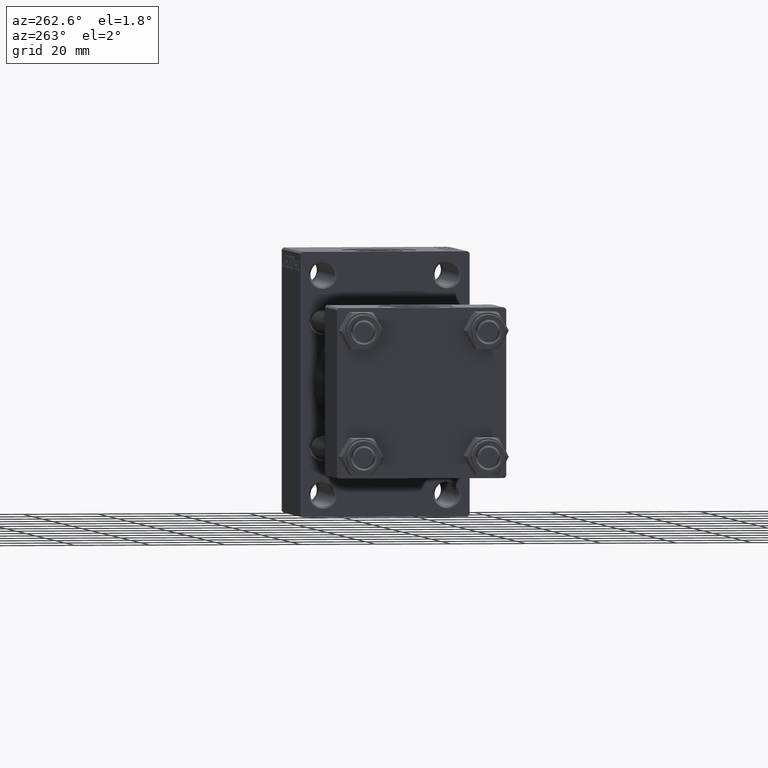
[diagram: clean part render]
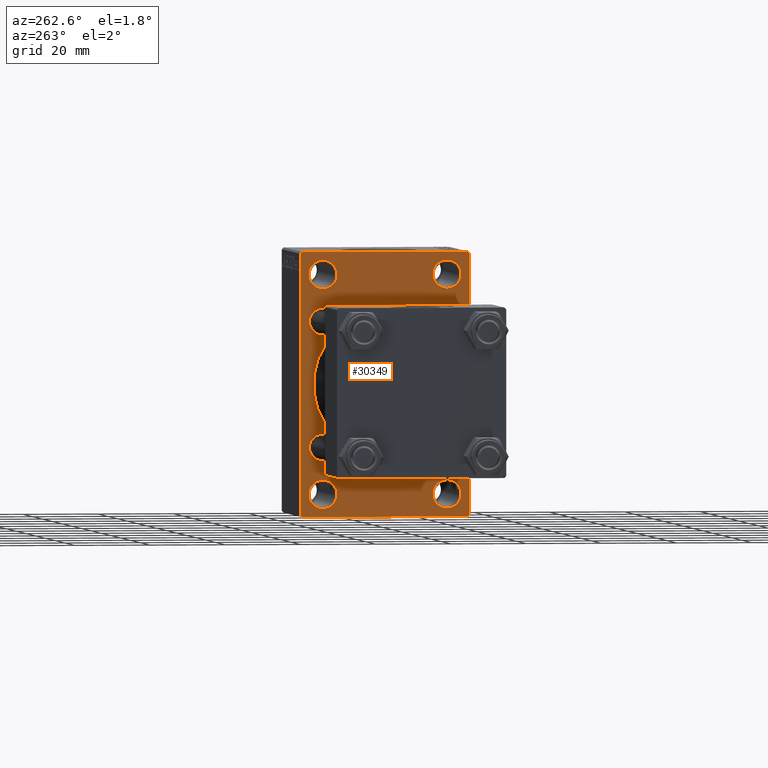
[diagram: same view with one face highlighted and labeled with its STEP entity id]
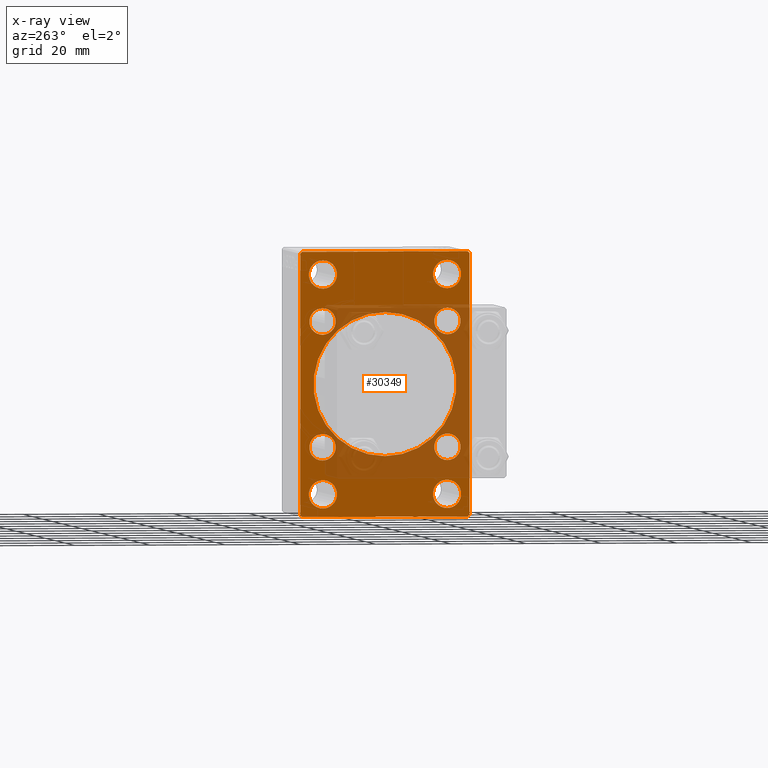
[diagram: x-ray of the same camera — body ghosted, the highlighted face saturated]
A machine part, auxiliary view. The second image highlights one B-rep face of the part: STEP entity #30349.
The next image is the same camera in x-ray: the body ghosted, the highlighted face saturated — about 34% of this face is hidden behind the body in this view.
In plain terms, the highlighted planar face has unit normal (-1, 0, 0).
Its self-contained STEP definition (entity closure, byte-faithful):
#128 = DIRECTION ( 'NONE',  ( 0.000000000000000000, 0.000000000000000000, 1.000000000000000000 ) ) ;
#211 = VERTEX_POINT ( 'NONE', #11566 ) ;
#306 = LINE ( 'NONE', #44600, #1522 ) ;
#430 = CIRCLE ( 'NONE', #41159, 3.500000000000006661 ) ;
#546 = FACE_BOUND ( 'NONE', #21988, .T. ) ;
#673 = EDGE_CURVE ( 'NONE', #44016, #38957, #18629, .T. ) ;
#787 = DIRECTION ( 'NONE',  ( 1.000000000000000000, 0.000000000000000000, 0.000000000000000000 ) ) ;
#964 = AXIS2_PLACEMENT_3D ( 'NONE', #19815, #8967, #30889 ) ;
#1014 = DIRECTION ( 'NONE',  ( 1.000000000000000000, 0.000000000000000000, 0.000000000000000000 ) ) ;
#1069 = VECTOR ( 'NONE', #35508, 1000.000000000000000 ) ;
#1114 = AXIS2_PLACEMENT_3D ( 'NONE', #35070, #2076, #16772 ) ;
#1242 = DIRECTION ( 'NONE',  ( -0.000000000000000000, 0.7071067811865474617, 0.7071067811865474617 ) ) ;
#1306 = CARTESIAN_POINT ( 'NONE',  ( 75.00000000000001421, -16.59999999999999076, -13.10000000000000142 ) ) ;
#1522 = VECTOR ( 'NONE', #15006, 999.9999999999998863 ) ;
#1729 = CIRCLE ( 'NONE', #15575, 3.749999999999937383 ) ;
#2076 = DIRECTION ( 'NONE',  ( 1.000000000000000000, 0.000000000000000000, 0.000000000000000000 ) ) ;
#2102 = AXIS2_PLACEMENT_3D ( 'NONE', #19238, #9124, #34410 ) ;
#2360 = CARTESIAN_POINT ( 'NONE',  ( 75.00000000000001421, 16.50000000000000000, 25.25000000000007461 ) ) ;
#2449 = CIRCLE ( 'NONE', #19395, 3.749999999999937383 ) ;
#2848 = CARTESIAN_POINT ( 'NONE',  ( 75.00000000000001421, -16.59999999999999076, -20.10000000000001208 ) ) ;
#2864 = DIRECTION ( 'NONE',  ( 0.000000000000000000, 0.000000000000000000, 1.000000000000000000 ) ) ;
#3168 = ORIENTED_EDGE ( 'NONE', *, *, #25784, .T. ) ;
#3332 = EDGE_LOOP ( 'NONE', ( #11319, #10748 ) ) ;
#3647 = ORIENTED_EDGE ( 'NONE', *, *, #37297, .T. ) ;
#3709 = CIRCLE ( 'NONE', #11421, 3.749999999999930278 ) ;
#4061 = VERTEX_POINT ( 'NONE', #31529 ) ;
#4308 = EDGE_CURVE ( 'NONE', #39603, #25160, #1729, .T. ) ;
#4470 = ORIENTED_EDGE ( 'NONE', *, *, #37786, .T. ) ;
#4563 = CARTESIAN_POINT ( 'NONE',  ( 75.00000000000001421, 16.59999999999999787, 13.09999999999999609 ) ) ;
#4972 = CARTESIAN_POINT ( 'NONE',  ( 75.00000000000001421, 22.49999999999999645, 34.50000000000000000 ) ) ;
#5538 = VERTEX_POINT ( 'NONE', #35523 ) ;
#5568 = CIRCLE ( 'NONE', #23253, 19.00000000000000000 ) ;
#5669 = EDGE_CURVE ( 'NONE', #25160, #39603, #12552, .T. ) ;
#5719 = DIRECTION ( 'NONE',  ( 0.000000000000000000, 0.000000000000000000, 1.000000000000000000 ) ) ;
#5794 = VERTEX_POINT ( 'NONE', #29972 ) ;
#6074 = CARTESIAN_POINT ( 'NONE',  ( 75.00000000000001421, 21.99999999999999645, -35.00000000000000000 ) ) ;
#6118 = CARTESIAN_POINT ( 'NONE',  ( 75.00000000000001421, 22.49999999999999645, -35.00000000000000000 ) ) ;
#6497 = CARTESIAN_POINT ( 'NONE',  ( 75.00000000000001421, 22.49999999999999645, -34.50000000000000000 ) ) ;
#6553 = VECTOR ( 'NONE', #45233, 1000.000000000000000 ) ;
#6584 = CIRCLE ( 'NONE', #19689, 3.749999999999933831 ) ;
#6755 = AXIS2_PLACEMENT_3D ( 'NONE', #7577, #41022, #25878 ) ;
#6778 = ORIENTED_EDGE ( 'NONE', *, *, #43752, .T. ) ;
#6816 = PLANE ( 'NONE',  #39939 ) ;
#6899 = ORIENTED_EDGE ( 'NONE', *, *, #13178, .F. ) ;
#7577 = CARTESIAN_POINT ( 'NONE',  ( 75.00000000000001421, -16.50000000000000000, 29.00000000000000711 ) ) ;
#7666 = ORIENTED_EDGE ( 'NONE', *, *, #14927, .T. ) ;
#7768 = FACE_BOUND ( 'NONE', #7979, .T. ) ;
#7836 = DIRECTION ( 'NONE',  ( 1.000000000000000000, 0.000000000000000000, 0.000000000000000000 ) ) ;
#7979 = EDGE_LOOP ( 'NONE', ( #4470, #47085 ) ) ;
#8231 = CARTESIAN_POINT ( 'NONE',  ( 75.00000000000001421, -28.49999999999999645, 28.49999999999999645 ) ) ;
#8967 = DIRECTION ( 'NONE',  ( 1.000000000000000000, 0.000000000000000000, 0.000000000000000000 ) ) ;
#9124 = DIRECTION ( 'NONE',  ( 1.000000000000000000, 0.000000000000000000, 0.000000000000000000 ) ) ;
#9327 = DIRECTION ( 'NONE',  ( 1.000000000000000000, 0.000000000000000000, 0.000000000000000000 ) ) ;
#9551 = CARTESIAN_POINT ( 'NONE',  ( 75.00000000000001421, 16.50000000000000000, -25.25000000000005684 ) ) ;
#9754 = LINE ( 'NONE', #6118, #1069 ) ;
#9782 = CARTESIAN_POINT ( 'NONE',  ( 75.00000000000001421, 22.49999999999999645, 35.00000000000000000 ) ) ;
#9987 = EDGE_LOOP ( 'NONE', ( #38731, #27593, #6899, #3168, #42037, #30927, #15376, #28165 ) ) ;
#10233 = DIRECTION ( 'NONE',  ( 0.000000000000000000, 0.000000000000000000, 1.000000000000000000 ) ) ;
#10328 = ORIENTED_EDGE ( 'NONE', *, *, #35034, .T. ) ;
#10677 = FACE_BOUND ( 'NONE', #42472, .T. ) ;
#10732 = CARTESIAN_POINT ( 'NONE',  ( 75.00000000000001421, 28.49999999999999645, -28.49999999999999645 ) ) ;
#10748 = ORIENTED_EDGE ( 'NONE', *, *, #5669, .T. ) ;
#10887 = LINE ( 'NONE', #43366, #24732 ) ;
#10983 = CARTESIAN_POINT ( 'NONE',  ( 75.00000000000001421, 16.50000000000000000, -28.99999999999999289 ) ) ;
#11117 = VERTEX_POINT ( 'NONE', #4972 ) ;
#11319 = ORIENTED_EDGE ( 'NONE', *, *, #4308, .T. ) ;
#11398 = FACE_BOUND ( 'NONE', #3332, .T. ) ;
#11421 = AXIS2_PLACEMENT_3D ( 'NONE', #33802, #45093, #38123 ) ;
#11566 = CARTESIAN_POINT ( 'NONE',  ( 75.00000000000001421, 21.99999999999999645, 35.00000000000000000 ) ) ;
#11628 = FACE_BOUND ( 'NONE', #16959, .T. ) ;
#11774 = EDGE_CURVE ( 'NONE', #18272, #30510, #47261, .T. ) ;
#12418 = EDGE_CURVE ( 'NONE', #23632, #28744, #430, .T. ) ;
#12503 = CARTESIAN_POINT ( 'NONE',  ( 75.00000000000001421, 22.49999999999999645, 35.00000000000000000 ) ) ;
#12552 = CIRCLE ( 'NONE', #36361, 3.749999999999937383 ) ;
#12933 = DIRECTION ( 'NONE',  ( 0.000000000000000000, -1.000000000000000000, 0.000000000000000000 ) ) ;
#12963 = DIRECTION ( 'NONE',  ( 0.000000000000000000, 0.000000000000000000, -1.000000000000000000 ) ) ;
#13178 = EDGE_CURVE ( 'NONE', #38107, #15637, #45443, .T. ) ;
#13328 = CARTESIAN_POINT ( 'NONE',  ( 75.00000000000001421, 16.50000000000000000, 32.74999999999992895 ) ) ;
#13642 = EDGE_CURVE ( 'NONE', #22430, #5538, #9754, .T. ) ;
#13719 = CARTESIAN_POINT ( 'NONE',  ( 75.00000000000001421, -16.50000000000000000, 32.74999999999993605 ) ) ;
#13856 = CARTESIAN_POINT ( 'NONE',  ( 75.00000000000001421, -16.59999999999999076, 20.10000000000001208 ) ) ;
#14285 = DIRECTION ( 'NONE',  ( -0.000000000000000000, 0.000000000000000000, 1.000000000000000000 ) ) ;
#14339 = DIRECTION ( 'NONE',  ( 0.000000000000000000, 0.000000000000000000, -1.000000000000000000 ) ) ;
#14369 = VERTEX_POINT ( 'NONE', #13719 ) ;
#14769 = FACE_BOUND ( 'NONE', #42838, .T. ) ;
#14828 = LINE ( 'NONE', #10732, #20125 ) ;
#14927 = EDGE_CURVE ( 'NONE', #30510, #18272, #31103, .T. ) ;
#15006 = DIRECTION ( 'NONE',  ( 0.000000000000000000, -0.7071067811865376918, 0.7071067811865574537 ) ) ;
#15153 = CIRCLE ( 'NONE', #2102, 3.500000000000003109 ) ;
#15376 = ORIENTED_EDGE ( 'NONE', *, *, #17796, .T. ) ;
#15575 = AXIS2_PLACEMENT_3D ( 'NONE', #27092, #34320, #44001 ) ;
#15637 = VERTEX_POINT ( 'NONE', #26899 ) ;
#15732 = AXIS2_PLACEMENT_3D ( 'NONE', #43180, #24442, #39111 ) ;
#15787 = EDGE_CURVE ( 'NONE', #19412, #44398, #21885, .T. ) ;
#15930 = VECTOR ( 'NONE', #1242, 1000.000000000000114 ) ;
#16081 = CARTESIAN_POINT ( 'NONE',  ( 75.00000000000001421, -16.59999999999999076, 13.10000000000000142 ) ) ;
#16190 = EDGE_CURVE ( 'NONE', #23935, #37276, #43396, .T. ) ;
#16577 = CARTESIAN_POINT ( 'NONE',  ( 75.00000000000001421, -22.50000000000000355, 35.00000000000000000 ) ) ;
#16718 = EDGE_LOOP ( 'NONE', ( #20314, #42570 ) ) ;
#16772 = DIRECTION ( 'NONE',  ( 0.000000000000000000, 0.000000000000000000, 1.000000000000000000 ) ) ;
#16785 = CIRCLE ( 'NONE', #6755, 3.749999999999930278 ) ;
#16959 = EDGE_LOOP ( 'NONE', ( #38317, #7666 ) ) ;
#17094 = EDGE_LOOP ( 'NONE', ( #24094, #40570 ) ) ;
#17710 = CARTESIAN_POINT ( 'NONE',  ( 75.00000000000001421, -2.602085213965210642E-15, 0.000000000000000000 ) ) ;
#17796 = EDGE_CURVE ( 'NONE', #11117, #23506, #27428, .T. ) ;
#17903 = DIRECTION ( 'NONE',  ( -1.000000000000000000, 0.000000000000000000, -0.000000000000000000 ) ) ;
#18141 = FACE_BOUND ( 'NONE', #16718, .T. ) ;
#18272 = VERTEX_POINT ( 'NONE', #1306 ) ;
#18629 = CIRCLE ( 'NONE', #45532, 19.00000000000000000 ) ;
#18848 = FACE_BOUND ( 'NONE', #17094, .T. ) ;
#19046 = EDGE_CURVE ( 'NONE', #26181, #34868, #6584, .T. ) ;
#19238 = CARTESIAN_POINT ( 'NONE',  ( 75.00000000000001421, -16.59999999999999076, 16.60000000000000853 ) ) ;
#19395 = AXIS2_PLACEMENT_3D ( 'NONE', #10983, #7836, #128 ) ;
#19412 = VERTEX_POINT ( 'NONE', #41869 ) ;
#19689 = AXIS2_PLACEMENT_3D ( 'NONE', #34006, #1014, #45056 ) ;
#19815 = CARTESIAN_POINT ( 'NONE',  ( 75.00000000000001421, 16.59999999999999787, 16.60000000000000497 ) ) ;
#19827 = VECTOR ( 'NONE', #12933, 1000.000000000000000 ) ;
#20125 = VECTOR ( 'NONE', #44180, 1000.000000000000114 ) ;
#20314 = ORIENTED_EDGE ( 'NONE', *, *, #24487, .T. ) ;
#20409 = CARTESIAN_POINT ( 'NONE',  ( 75.00000000000001421, -22.50000000000000355, 34.50000000000000000 ) ) ;
#21048 = ORIENTED_EDGE ( 'NONE', *, *, #15787, .T. ) ;
#21254 = ORIENTED_EDGE ( 'NONE', *, *, #45051, .T. ) ;
#21523 = CARTESIAN_POINT ( 'NONE',  ( 75.00000000000001421, 0.000000000000000000, 0.000000000000000000 ) ) ;
#21885 = CIRCLE ( 'NONE', #1114, 3.500000000000006661 ) ;
#21901 = DIRECTION ( 'NONE',  ( 1.000000000000000000, 0.000000000000000000, 0.000000000000000000 ) ) ;
#21988 = EDGE_LOOP ( 'NONE', ( #10328, #21048 ) ) ;
#22430 = VERTEX_POINT ( 'NONE', #6074 ) ;
#22577 = DIRECTION ( 'NONE',  ( 0.000000000000000000, 0.000000000000000000, 1.000000000000000000 ) ) ;
#22706 = CARTESIAN_POINT ( 'NONE',  ( 75.00000000000001421, 16.59999999999999787, -16.60000000000000497 ) ) ;
#23253 = AXIS2_PLACEMENT_3D ( 'NONE', #17710, #36492, #14339 ) ;
#23427 = DIRECTION ( 'NONE',  ( 0.000000000000000000, 0.000000000000000000, 1.000000000000000000 ) ) ;
#23506 = VERTEX_POINT ( 'NONE', #6497 ) ;
#23632 = VERTEX_POINT ( 'NONE', #4563 ) ;
#23745 = VERTEX_POINT ( 'NONE', #28372 ) ;
#23935 = VERTEX_POINT ( 'NONE', #16081 ) ;
#24025 = DIRECTION ( 'NONE',  ( 0.000000000000000000, 0.000000000000000000, -1.000000000000000000 ) ) ;
#24094 = ORIENTED_EDGE ( 'NONE', *, *, #24146, .T. ) ;
#24146 = EDGE_CURVE ( 'NONE', #34868, #26181, #45977, .T. ) ;
#24161 = DIRECTION ( 'NONE',  ( 1.000000000000000000, 0.000000000000000000, 0.000000000000000000 ) ) ;
#24442 = DIRECTION ( 'NONE',  ( 1.000000000000000000, 0.000000000000000000, 0.000000000000000000 ) ) ;
#24487 = EDGE_CURVE ( 'NONE', #14369, #23745, #3709, .T. ) ;
#24618 = CARTESIAN_POINT ( 'NONE',  ( 75.00000000000001421, -16.59999999999999076, -16.60000000000000853 ) ) ;
#24727 = DIRECTION ( 'NONE',  ( 1.000000000000000000, 0.000000000000000000, 0.000000000000000000 ) ) ;
#24732 = VECTOR ( 'NONE', #25098, 1000.000000000000114 ) ;
#25098 = DIRECTION ( 'NONE',  ( 0.000000000000000000, 0.7071067811865474617, -0.7071067811865474617 ) ) ;
#25121 = DIRECTION ( 'NONE',  ( 1.000000000000000000, 0.000000000000000000, 0.000000000000000000 ) ) ;
#25160 = VERTEX_POINT ( 'NONE', #37295 ) ;
#25685 = ORIENTED_EDGE ( 'NONE', *, *, #16190, .T. ) ;
#25784 = EDGE_CURVE ( 'NONE', #38107, #5794, #34484, .T. ) ;
#25842 = FACE_BOUND ( 'NONE', #37755, .T. ) ;
#25878 = DIRECTION ( 'NONE',  ( 0.000000000000000000, 0.000000000000000000, 1.000000000000000000 ) ) ;
#26181 = VERTEX_POINT ( 'NONE', #2360 ) ;
#26287 = ORIENTED_EDGE ( 'NONE', *, *, #673, .T. ) ;
#26447 = EDGE_CURVE ( 'NONE', #211, #5794, #42739, .T. ) ;
#26899 = CARTESIAN_POINT ( 'NONE',  ( 75.00000000000001421, -22.50000000000000355, -34.49999999999997158 ) ) ;
#27092 = CARTESIAN_POINT ( 'NONE',  ( 75.00000000000001421, -16.50000000000000000, -28.99999999999999289 ) ) ;
#27229 = CARTESIAN_POINT ( 'NONE',  ( 75.00000000000001421, -2.602085213965210642E-15, 19.00000000000000000 ) ) ;
#27428 = LINE ( 'NONE', #12503, #6553 ) ;
#27593 = ORIENTED_EDGE ( 'NONE', *, *, #30305, .T. ) ;
#27773 = CIRCLE ( 'NONE', #33928, 3.500000000000006661 ) ;
#28165 = ORIENTED_EDGE ( 'NONE', *, *, #38654, .T. ) ;
#28372 = CARTESIAN_POINT ( 'NONE',  ( 75.00000000000001421, -16.50000000000000000, 25.25000000000007816 ) ) ;
#28465 = DIRECTION ( 'NONE',  ( 0.000000000000000000, 0.000000000000000000, 1.000000000000000000 ) ) ;
#28744 = VERTEX_POINT ( 'NONE', #33554 ) ;
#29090 = CARTESIAN_POINT ( 'NONE',  ( 75.00000000000001421, -16.59999999999999076, -16.60000000000000853 ) ) ;
#29093 = AXIS2_PLACEMENT_3D ( 'NONE', #39644, #24727, #5719 ) ;
#29122 = CARTESIAN_POINT ( 'NONE',  ( 75.00000000000001421, 16.50000000000000000, -28.99999999999999289 ) ) ;
#29972 = CARTESIAN_POINT ( 'NONE',  ( 75.00000000000001421, -21.99999999999998934, 35.00000000000000000 ) ) ;
#30305 = EDGE_CURVE ( 'NONE', #5538, #15637, #306, .T. ) ;
#30349 = ADVANCED_FACE ( 'NONE', ( #18141, #11398, #14769, #18848, #25842, #7768, #546, #11628, #10677, #39802 ), #6816, .T. ) ;
#30510 = VERTEX_POINT ( 'NONE', #2848 ) ;
#30889 = DIRECTION ( 'NONE',  ( 0.000000000000000000, 0.000000000000000000, 1.000000000000000000 ) ) ;
#30927 = ORIENTED_EDGE ( 'NONE', *, *, #38395, .T. ) ;
#31103 = CIRCLE ( 'NONE', #37230, 3.500000000000006661 ) ;
#31529 = CARTESIAN_POINT ( 'NONE',  ( 75.00000000000001421, 16.50000000000000000, -32.74999999999992895 ) ) ;
#32623 = CARTESIAN_POINT ( 'NONE',  ( 75.00000000000001421, -16.50000000000000000, -28.99999999999999289 ) ) ;
#33176 = DIRECTION ( 'NONE',  ( 1.000000000000000000, 0.000000000000000000, 0.000000000000000000 ) ) ;
#33554 = CARTESIAN_POINT ( 'NONE',  ( 75.00000000000001421, 16.59999999999999787, 20.10000000000001208 ) ) ;
#33611 = VERTEX_POINT ( 'NONE', #9551 ) ;
#33802 = CARTESIAN_POINT ( 'NONE',  ( 75.00000000000001421, -16.50000000000000000, 29.00000000000000711 ) ) ;
#33928 = AXIS2_PLACEMENT_3D ( 'NONE', #22706, #787, #23427 ) ;
#34006 = CARTESIAN_POINT ( 'NONE',  ( 75.00000000000001421, 16.50000000000000000, 29.00000000000000355 ) ) ;
#34320 = DIRECTION ( 'NONE',  ( 1.000000000000000000, 0.000000000000000000, 0.000000000000000000 ) ) ;
#34410 = DIRECTION ( 'NONE',  ( 0.000000000000000000, 0.000000000000000000, 1.000000000000000000 ) ) ;
#34484 = LINE ( 'NONE', #8231, #15930 ) ;
#34868 = VERTEX_POINT ( 'NONE', #13328 ) ;
#35034 = EDGE_CURVE ( 'NONE', #44398, #19412, #27773, .T. ) ;
#35070 = CARTESIAN_POINT ( 'NONE',  ( 75.00000000000001421, 16.59999999999999787, -16.60000000000000497 ) ) ;
#35202 = AXIS2_PLACEMENT_3D ( 'NONE', #29122, #21901, #2864 ) ;
#35479 = CARTESIAN_POINT ( 'NONE',  ( 75.00000000000001421, -2.752562955852396712E-16, -19.00000000000000000 ) ) ;
#35508 = DIRECTION ( 'NONE',  ( 0.000000000000000000, -1.000000000000000000, 0.000000000000000000 ) ) ;
#35523 = CARTESIAN_POINT ( 'NONE',  ( 75.00000000000001421, -21.99999999999997513, -35.00000000000000000 ) ) ;
#36242 = ORIENTED_EDGE ( 'NONE', *, *, #39517, .T. ) ;
#36361 = AXIS2_PLACEMENT_3D ( 'NONE', #32623, #43193, #10233 ) ;
#36492 = DIRECTION ( 'NONE',  ( 1.000000000000000000, 0.000000000000000000, 0.000000000000000000 ) ) ;
#37230 = AXIS2_PLACEMENT_3D ( 'NONE', #24618, #24161, #28465 ) ;
#37276 = VERTEX_POINT ( 'NONE', #13856 ) ;
#37295 = CARTESIAN_POINT ( 'NONE',  ( 75.00000000000001421, -16.50000000000000000, -32.74999999999992895 ) ) ;
#37297 = EDGE_CURVE ( 'NONE', #38957, #44016, #5568, .T. ) ;
#37755 = EDGE_LOOP ( 'NONE', ( #6778, #25685 ) ) ;
#37786 = EDGE_CURVE ( 'NONE', #28744, #23632, #42465, .T. ) ;
#38107 = VERTEX_POINT ( 'NONE', #20409 ) ;
#38123 = DIRECTION ( 'NONE',  ( 0.000000000000000000, 0.000000000000000000, 1.000000000000000000 ) ) ;
#38317 = ORIENTED_EDGE ( 'NONE', *, *, #11774, .T. ) ;
#38395 = EDGE_CURVE ( 'NONE', #211, #11117, #10887, .T. ) ;
#38654 = EDGE_CURVE ( 'NONE', #23506, #22430, #14828, .T. ) ;
#38731 = ORIENTED_EDGE ( 'NONE', *, *, #13642, .T. ) ;
#38957 = VERTEX_POINT ( 'NONE', #35479 ) ;
#39034 = CIRCLE ( 'NONE', #35202, 3.749999999999937383 ) ;
#39111 = DIRECTION ( 'NONE',  ( 0.000000000000000000, 0.000000000000000000, 1.000000000000000000 ) ) ;
#39517 = EDGE_CURVE ( 'NONE', #4061, #33611, #2449, .T. ) ;
#39603 = VERTEX_POINT ( 'NONE', #42008 ) ;
#39644 = CARTESIAN_POINT ( 'NONE',  ( 75.00000000000001421, 16.50000000000000000, 29.00000000000000355 ) ) ;
#39795 = DIRECTION ( 'NONE',  ( 0.000000000000000000, 0.000000000000000000, 1.000000000000000000 ) ) ;
#39802 = FACE_OUTER_BOUND ( 'NONE', #9987, .T. ) ;
#39939 = AXIS2_PLACEMENT_3D ( 'NONE', #21523, #17903, #14285 ) ;
#40570 = ORIENTED_EDGE ( 'NONE', *, *, #19046, .T. ) ;
#41022 = DIRECTION ( 'NONE',  ( 1.000000000000000000, 0.000000000000000000, 0.000000000000000000 ) ) ;
#41159 = AXIS2_PLACEMENT_3D ( 'NONE', #41161, #25121, #39795 ) ;
#41161 = CARTESIAN_POINT ( 'NONE',  ( 75.00000000000001421, 16.59999999999999787, 16.60000000000000497 ) ) ;
#41183 = VECTOR ( 'NONE', #12963, 1000.000000000000000 ) ;
#41823 = CARTESIAN_POINT ( 'NONE',  ( 75.00000000000001421, -2.602085213965210642E-15, 0.000000000000000000 ) ) ;
#41869 = CARTESIAN_POINT ( 'NONE',  ( 75.00000000000001421, 16.59999999999999787, -20.10000000000000853 ) ) ;
#42008 = CARTESIAN_POINT ( 'NONE',  ( 75.00000000000001421, -16.50000000000000000, -25.25000000000005684 ) ) ;
#42037 = ORIENTED_EDGE ( 'NONE', *, *, #26447, .F. ) ;
#42465 = CIRCLE ( 'NONE', #964, 3.500000000000006661 ) ;
#42472 = EDGE_LOOP ( 'NONE', ( #26287, #3647 ) ) ;
#42570 = ORIENTED_EDGE ( 'NONE', *, *, #46359, .T. ) ;
#42650 = AXIS2_PLACEMENT_3D ( 'NONE', #29090, #33176, #22577 ) ;
#42739 = LINE ( 'NONE', #9782, #19827 ) ;
#42838 = EDGE_LOOP ( 'NONE', ( #21254, #36242 ) ) ;
#43180 = CARTESIAN_POINT ( 'NONE',  ( 75.00000000000001421, -16.59999999999999076, 16.60000000000000853 ) ) ;
#43193 = DIRECTION ( 'NONE',  ( 1.000000000000000000, 0.000000000000000000, 0.000000000000000000 ) ) ;
#43366 = CARTESIAN_POINT ( 'NONE',  ( 75.00000000000001421, 28.49999999999999645, 28.49999999999999645 ) ) ;
#43396 = CIRCLE ( 'NONE', #15732, 3.500000000000003109 ) ;
#43752 = EDGE_CURVE ( 'NONE', #37276, #23935, #15153, .T. ) ;
#44001 = DIRECTION ( 'NONE',  ( 0.000000000000000000, 0.000000000000000000, 1.000000000000000000 ) ) ;
#44016 = VERTEX_POINT ( 'NONE', #27229 ) ;
#44180 = DIRECTION ( 'NONE',  ( -0.000000000000000000, -0.7071067811865474617, -0.7071067811865474617 ) ) ;
#44398 = VERTEX_POINT ( 'NONE', #47327 ) ;
#44600 = CARTESIAN_POINT ( 'NONE',  ( 75.00000000000001421, -28.50000000000030198, -28.49999999999951328 ) ) ;
#45051 = EDGE_CURVE ( 'NONE', #33611, #4061, #39034, .T. ) ;
#45056 = DIRECTION ( 'NONE',  ( 0.000000000000000000, 0.000000000000000000, 1.000000000000000000 ) ) ;
#45093 = DIRECTION ( 'NONE',  ( 1.000000000000000000, 0.000000000000000000, 0.000000000000000000 ) ) ;
#45233 = DIRECTION ( 'NONE',  ( 0.000000000000000000, 0.000000000000000000, -1.000000000000000000 ) ) ;
#45443 = LINE ( 'NONE', #16577, #41183 ) ;
#45532 = AXIS2_PLACEMENT_3D ( 'NONE', #41823, #9327, #24025 ) ;
#45977 = CIRCLE ( 'NONE', #29093, 3.749999999999933831 ) ;
#46359 = EDGE_CURVE ( 'NONE', #23745, #14369, #16785, .T. ) ;
#47085 = ORIENTED_EDGE ( 'NONE', *, *, #12418, .T. ) ;
#47261 = CIRCLE ( 'NONE', #42650, 3.500000000000006661 ) ;
#47327 = CARTESIAN_POINT ( 'NONE',  ( 75.00000000000001421, 16.59999999999999787, -13.09999999999999787 ) ) ;